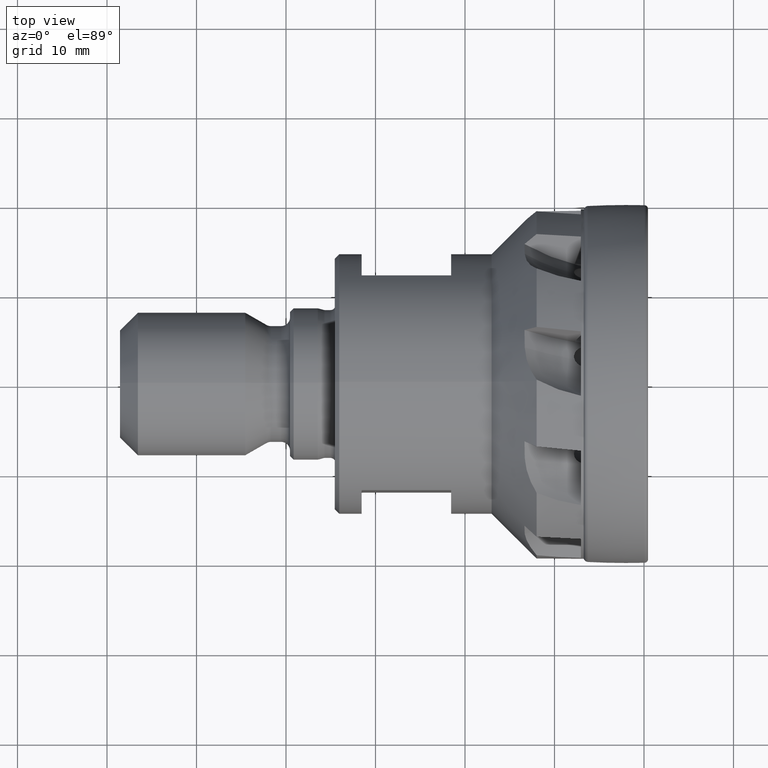
[diagram: clean part render]
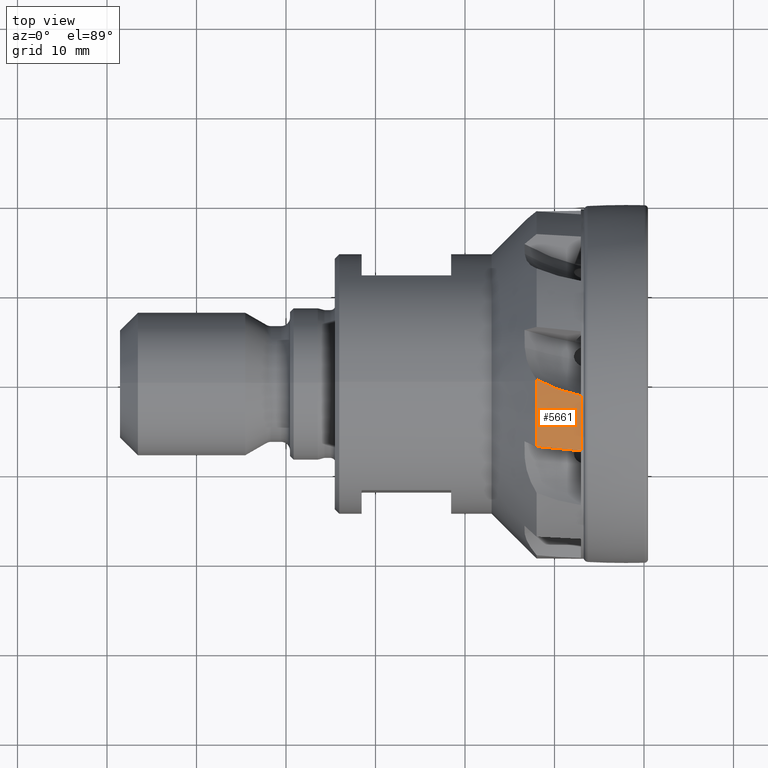
[diagram: same view with one face highlighted and labeled with its STEP entity id]
A machine part, top view. The second image highlights one B-rep face of the part: STEP entity #5661.
In plain terms, the highlighted cylindrical surface (partial cylindrical patch) has radius 19.5275 mm, axis along (1, -0, -0).
Its self-contained STEP definition (entity closure, byte-faithful):
#150 = CARTESIAN_POINT ( 'NONE',  ( -12.00000000000000200, 2.391429037034993400E-015, 19.52749999999999600 ) ) ;
#218 = CARTESIAN_POINT ( 'NONE',  ( -11.99999999998580300, 0.1562030332880164100, 19.52687524574646400 ) ) ;
#743 = CARTESIAN_POINT ( 'NONE',  ( -7.050000000000010500, -1.648829972232157300, 19.45776492746967200 ) ) ;
#768 = CARTESIAN_POINT ( 'NONE',  ( -7.050000000000009600, -7.775004236788063800, 17.91291616035556800 ) ) ;
#890 = CARTESIAN_POINT ( 'NONE',  ( -12.00000000000000200, -7.294502120895246300, 18.11390336339063700 ) ) ;
#943 = CARTESIAN_POINT ( 'NONE',  ( -6.999999999999954700, -1.659441943730048100, 19.45686276575412800 ) ) ;
#1181 = CARTESIAN_POINT ( 'NONE',  ( -7.050000000000009600, -7.775004236788063800, 17.91291616035556800 ) ) ;
#1190 = CARTESIAN_POINT ( 'NONE',  ( -8.698913747250555800, -7.615735131750894600, 17.98204605273981800 ) ) ;
#1191 = CARTESIAN_POINT ( 'NONE',  ( -10.34901157662202000, -7.455558263378590000, 18.04904575929729700 ) ) ;
#1192 = CARTESIAN_POINT ( 'NONE',  ( -12.00000000000000200, -7.294502120895246300, 18.11390336339063700 ) ) ;
#1194 = CARTESIAN_POINT ( 'NONE',  ( -7.000000000000004400, -7.779833509554752200, 17.91081926695757400 ) ) ;
#1201 = CARTESIAN_POINT ( 'NONE',  ( -7.016666530350218700, -7.778223846195579000, 17.91151844842712700 ) ) ;
#1202 = CARTESIAN_POINT ( 'NONE',  ( -7.033333197117796600, -7.776614088596922200, 17.91221741289746200 ) ) ;
#1203 = CARTESIAN_POINT ( 'NONE',  ( -7.050000000000009600, -7.775004236788063800, 17.91291616035556800 ) ) ;
#1382 = DIRECTION ( 'NONE',  ( 1.000000000000000000, -0.0000000000000000000, -0.0000000000000000000 ) ) ;
#1384 = CYLINDRICAL_SURFACE ( 'NONE', #8382, 19.52749999999999600 ) ;
#1385 = FACE_OUTER_BOUND ( 'NONE', #3856, .T. ) ;
#1386 = CARTESIAN_POINT ( 'NONE',  ( 0.0000000000000000000, 0.0000000000000000000, 0.0000000000000000000 ) ) ;
#1388 = DIRECTION ( 'NONE',  ( 0.0000000000000000000, 0.0000000000000000000, -1.000000000000000000 ) ) ;
#1497 = CARTESIAN_POINT ( 'NONE',  ( -7.000000000000002700, 0.0000000000000000000, 0.0000000000000000000 ) ) ;
#1498 = DIRECTION ( 'NONE',  ( 1.000000000000000000, -0.0000000000000000000, -0.0000000000000000000 ) ) ;
#1499 = DIRECTION ( 'NONE',  ( 0.0000000000000000000, 0.0000000000000000000, -1.000000000000000000 ) ) ;
#1850 = VERTEX_POINT ( 'NONE', #150 ) ;
#1919 = VERTEX_POINT ( 'NONE', #218 ) ;
#2131 = B_SPLINE_CURVE_WITH_KNOTS ( 'NONE', 3,
 ( #7162, #7163, #7168, #7169, #7170, #7171 ),
 .UNSPECIFIED., .F., .F.,
 ( 4, 2, 4 ),
 ( 2.273743319121220500E-007, 0.002634870149397244700, 0.005269512924462577300 ),
 .UNSPECIFIED. ) ;
#2209 = B_SPLINE_CURVE_WITH_KNOTS ( 'NONE', 3,
 ( #7158, #7167, #7182, #7183 ),
 .UNSPECIFIED., .F., .F.,
 ( 4, 4 ),
 ( 0.005269512924462577300, 0.005320139820006035900 ),
 .UNSPECIFIED. ) ;
#2634 = CARTESIAN_POINT ( 'NONE',  ( -12.00000000000000200, 0.0000000000000000000, 0.0000000000000000000 ) ) ;
#2635 = DIRECTION ( 'NONE',  ( 1.000000000000000000, -0.0000000000000000000, -0.0000000000000000000 ) ) ;
#2636 = DIRECTION ( 'NONE',  ( 0.0000000000000000000, 0.0000000000000000000, -1.000000000000000000 ) ) ;
#3573 = ORIENTED_EDGE ( 'NONE', *, *, #5384, .F. ) ;
#3574 = ORIENTED_EDGE ( 'NONE', *, *, #5387, .F. ) ;
#3575 = ORIENTED_EDGE ( 'NONE', *, *, #5689, .F. ) ;
#3576 = ORIENTED_EDGE ( 'NONE', *, *, #5327, .F. ) ;
#3577 = ORIENTED_EDGE ( 'NONE', *, *, #5325, .F. ) ;
#3578 = ORIENTED_EDGE ( 'NONE', *, *, #5747, .T. ) ;
#3579 = ORIENTED_EDGE ( 'NONE', *, *, #6911, .T. ) ;
#3856 = EDGE_LOOP ( 'NONE', ( #3573, #3574, #3575, #3576, #3577, #3578, #3579 ) ) ;
#4204 = CARTESIAN_POINT ( 'NONE',  ( -7.000000000000004400, -7.779833509554752200, 17.91081926695757400 ) ) ;
#5325 = EDGE_CURVE ( 'NONE', #1919, #8510, #2131, .T. ) ;
#5327 = EDGE_CURVE ( 'NONE', #8510, #9053, #2209, .T. ) ;
#5384 = EDGE_CURVE ( 'NONE', #8538, #8941, #8046, .T. ) ;
#5387 = EDGE_CURVE ( 'NONE', #9177, #8538, #8047, .T. ) ;
#5661 = ADVANCED_FACE ( 'NONE', ( #1385 ), #1384, .T. ) ;
#5689 = EDGE_CURVE ( 'NONE', #9053, #9177, #8424, .T. ) ;
#5747 = EDGE_CURVE ( 'NONE', #1919, #1850, #7069, .T. ) ;
#6892 = AXIS2_PLACEMENT_3D ( 'NONE', #8037, #8038, #8039 ) ;
#6893 = CIRCLE ( 'NONE', #6892, 19.52749999999999600 ) ;
#6911 = EDGE_CURVE ( 'NONE', #1850, #8941, #6893, .T. ) ;
#7069 = CIRCLE ( 'NONE', #7094, 19.52749999999999600 ) ;
#7094 = AXIS2_PLACEMENT_3D ( 'NONE', #2634, #2635, #2636 ) ;
#7158 = CARTESIAN_POINT ( 'NONE',  ( -7.050000000000010500, -1.648829972232157300, 19.45776492746967200 ) ) ;
#7162 = CARTESIAN_POINT ( 'NONE',  ( -11.99999999998580300, 0.1562030332880164100, 19.52687524574646400 ) ) ;
#7163 = CARTESIAN_POINT ( 'NONE',  ( -11.22751372642060900, -0.2898310456947682000, 19.53044324497505400 ) ) ;
#7167 = CARTESIAN_POINT ( 'NONE',  ( -7.033339952064824100, -1.652385500862650900, 19.45746363581593000 ) ) ;
#7168 = CARTESIAN_POINT ( 'NONE',  ( -10.42143498719200200, -0.6427837972001205800, 19.51913506777821200 ) ) ;
#7169 = CARTESIAN_POINT ( 'NONE',  ( -8.766433850726731000, -1.230489291261795700, 19.49091329076711400 ) ) ;
#7170 = CARTESIAN_POINT ( 'NONE',  ( -7.916995190071154400, -1.463798918717135400, 19.47344425898418100 ) ) ;
#7171 = CARTESIAN_POINT ( 'NONE',  ( -7.050000000000010500, -1.648829972232157300, 19.45776492746967200 ) ) ;
#7182 = CARTESIAN_POINT ( 'NONE',  ( -7.016673280310646600, -1.655922810348533100, 19.45716290651214600 ) ) ;
#7183 = CARTESIAN_POINT ( 'NONE',  ( -6.999999999999954700, -1.659441943730048100, 19.45686276575412800 ) ) ;
#8037 = CARTESIAN_POINT ( 'NONE',  ( -12.00000000000000200, 0.0000000000000000000, 0.0000000000000000000 ) ) ;
#8038 = DIRECTION ( 'NONE',  ( 1.000000000000000000, -0.0000000000000000000, -0.0000000000000000000 ) ) ;
#8039 = DIRECTION ( 'NONE',  ( 0.0000000000000000000, 0.0000000000000000000, -1.000000000000000000 ) ) ;
#8046 =( BOUNDED_CURVE ( )  B_SPLINE_CURVE ( 3, ( #1181, #1190, #1191, #1192 ),
 .UNSPECIFIED., .F., .T. ) 
 B_SPLINE_CURVE_WITH_KNOTS ( ( 4, 4 ),
 ( 1.510355696091021200, 1.537028804289249000 ),
 .UNSPECIFIED. ) 
 CURVE ( )  GEOMETRIC_REPRESENTATION_ITEM ( )  RATIONAL_B_SPLINE_CURVE ( ( 1.000000000000000000, 0.9999407129870121500, 0.9999407129870121500, 1.000000000000000000 ) ) 
 REPRESENTATION_ITEM ( '' )  );
#8047 =( BOUNDED_CURVE ( )  B_SPLINE_CURVE ( 3, ( #1194, #1201, #1202, #1203 ),
 .UNSPECIFIED., .F., .T. ) 
 B_SPLINE_CURVE_WITH_KNOTS ( ( 4, 4 ),
 ( 1.510086083071615800, 1.510355696091021200 ),
 .UNSPECIFIED. ) 
 CURVE ( )  GEOMETRIC_REPRESENTATION_ITEM ( )  RATIONAL_B_SPLINE_CURVE ( ( 1.000000000000000000, 0.9999999939424016900, 0.9999999939424016900, 1.000000000000000000 ) ) 
 REPRESENTATION_ITEM ( '' )  );
#8381 = AXIS2_PLACEMENT_3D ( 'NONE', #1497, #1498, #1499 ) ;
#8382 = AXIS2_PLACEMENT_3D ( 'NONE', #1386, #1382, #1388 ) ;
#8424 = CIRCLE ( 'NONE', #8381, 19.52750000000000000 ) ;
#8510 = VERTEX_POINT ( 'NONE', #743 ) ;
#8538 = VERTEX_POINT ( 'NONE', #768 ) ;
#8941 = VERTEX_POINT ( 'NONE', #890 ) ;
#9053 = VERTEX_POINT ( 'NONE', #943 ) ;
#9177 = VERTEX_POINT ( 'NONE', #4204 ) ;